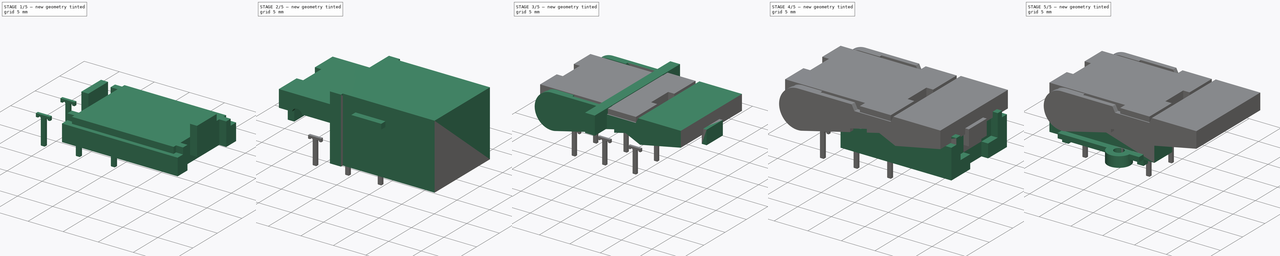
[diagram: build sequence overview — one tinted view per stage of 5, left to right]
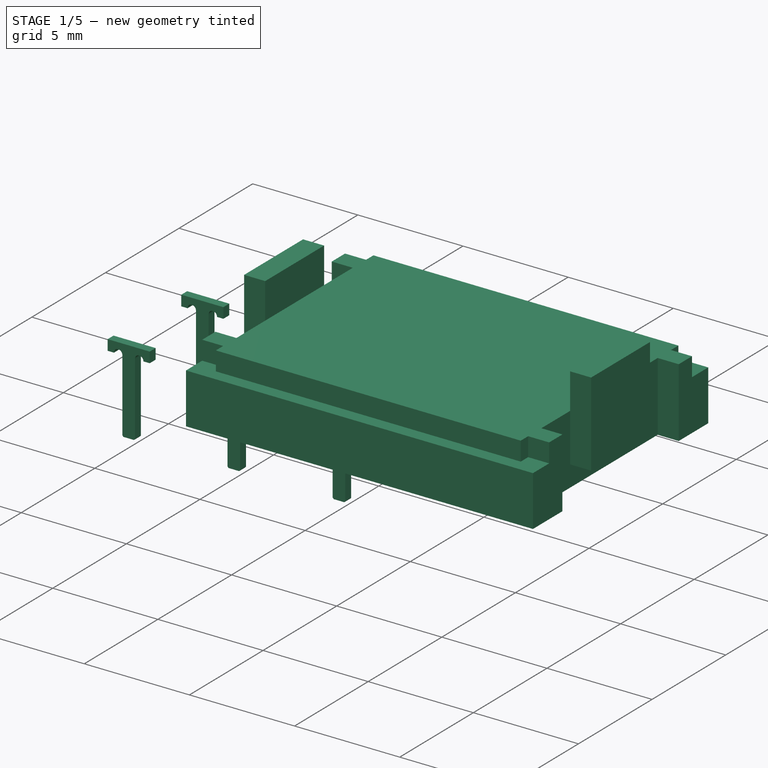
[diagram: stage 1 of 5 — iso view after this stage's code; geometry added in this stage tinted green]
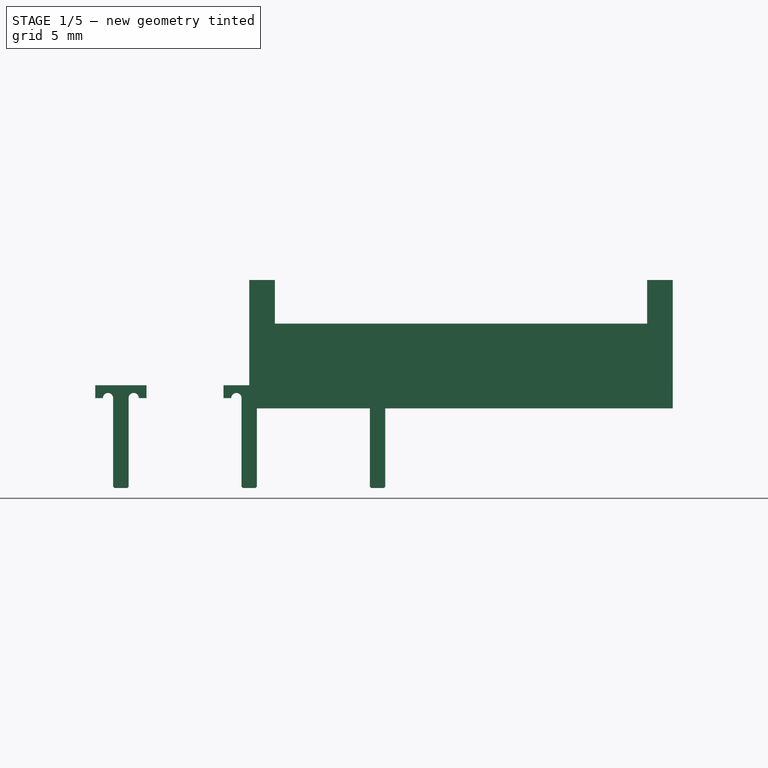
[diagram: stage 1 of 5 — front view after this stage's code; geometry added in this stage tinted green]
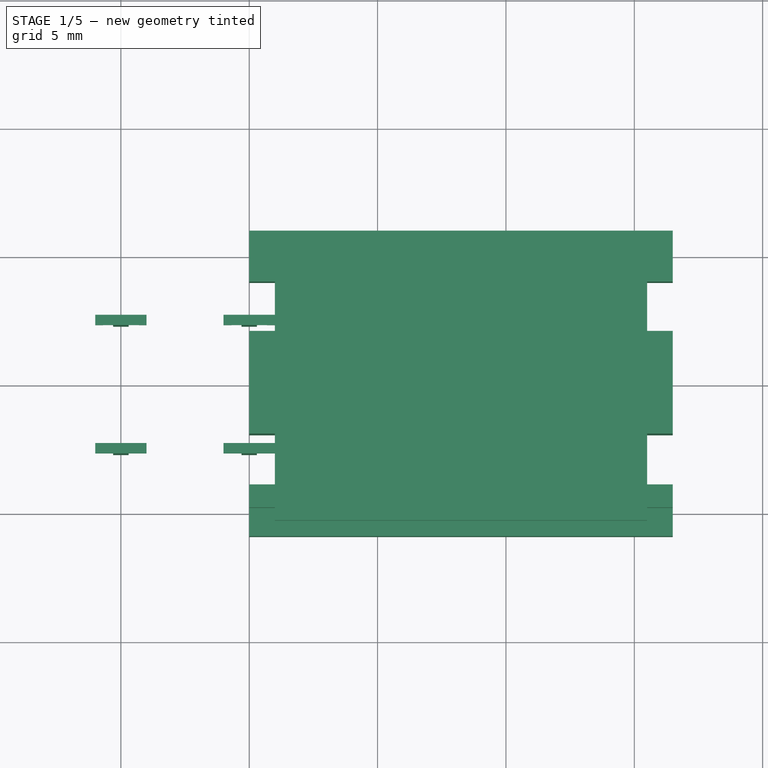
[diagram: stage 1 of 5 — top view after this stage's code; geometry added in this stage tinted green]
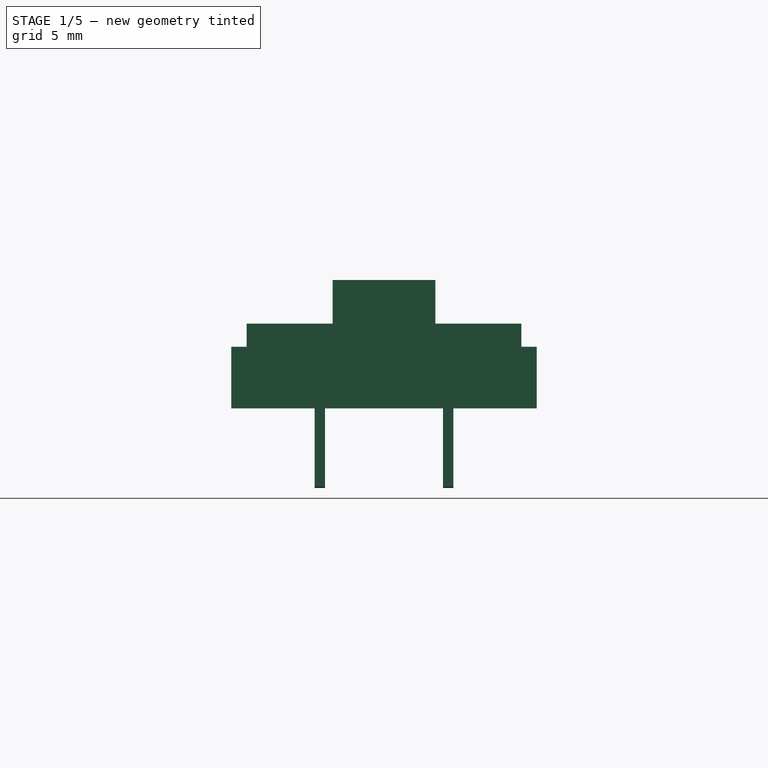
[diagram: stage 1 of 5 — right view after this stage's code; geometry added in this stage tinted green]
FCSTD DOCUMENT  (FreeCAD 0.18R4 (GitTag))
Label: H012-10
License: All rights reserved
LicenseURL: http://en.wikipedia.org/wiki/All_rights_reserved
objects: Part::Box×37, Part::Cut×19, Part::Cylinder×8, Part::MultiFuse×7, Part::Compound×7, Sketcher::SketchObject×7, Part::Extrusion×7, Part::Chamfer×2
note: 94 computed .brp shape members not serialized (recipe doc carries the construction recipe); baked Part::Feature solids carry a one-line shape summary decoded from their .brp

FEATURE [Part::Box] Box026  label="Cube023"
  AttacherType = Attacher::AttachEngine3D
  Height = 2.4
  Length = 16.5
  Placement = pos=(0,3.95,0) rot=(0,0,1;0rad)
  Width = 2
FEATURE [Part::Box] Box029  label="Cube026"
  AttacherType = Attacher::AttachEngine3D
  Height = 0.9
  Length = 16.5
  Placement = pos=(0,-4.85,2.4) rot=(0,0,1;0rad)
  Width = 0.9
  expr: Height = 0.9
FEATURE [Part::Box] Box030  label="Cube027"
  AttacherType = Attacher::AttachEngine3D
  Height = 4
  Length = 1
  Placement = pos=(15.5,-2,1) rot=(0,0,1;0rad)
  Width = 4
  expr: Placement.Base.y = -Width / 2
FEATURE [Part::Box] Box031  label="Cube028"
  AttacherType = Attacher::AttachEngine3D
  Height = 4
  Length = 1
  Placement = pos=(0,-2,1) rot=(0,0,1;0rad)
  Width = 4
  expr: Placement.Base.y = -Width / 2
FEATURE [Part::Box] Box032  label="Cube029"
  AttacherType = Attacher::AttachEngine3D
  Height = 2.4
  Length = 16.5
  Placement = pos=(0,-5.95,0) rot=(0,0,1;0rad)
  Width = 2
FEATURE [Part::Box] Box035  label="Cube032"
  AttacherType = Attacher::AttachEngine3D
  Height = 0.9
  Length = 16.5
  Placement = pos=(0,3.95,2.4) rot=(0,0,1;0rad)
  Width = 0.9
  expr: Height = 0.9
FEATURE [Part::Box] Box036  label="Cube033"
  AttacherType = Attacher::AttachEngine3D
  Height = 3.3
  Length = 14.5
  Placement = pos=(1,-5.35,0) rot=(0,0,1;0rad)
  Width = 10.7
  expr: Placement.Base.y = -Width / 2
FEATURE [Part::Compound] Compound003
  Links = -> [Box030,Box031]
FEATURE [Part::Compound] Compound004
  Links = -> [Box029,Box035]
FEATURE [Part::Compound] Compound005
  Links = -> [Box026,Box032]
FEATURE [Sketcher::SketchObject] Sketch002
  Placement = pos=(0,0.2,0) rot=(1,0,0;1.5708rad)
  sketch-geometry (14):
    g0: LineSegment StartX=0 StartY=0 StartZ=0 EndX=0.25 EndY=0 EndZ=0
    g1: LineSegment StartX=0.25 StartY=0 StartZ=0 EndX=0.3 EndY=0.05 EndZ=0
    g2: LineSegment StartX=0.3 StartY=0.05 StartZ=0 EndX=0.3 EndY=3.5 EndZ=0
    g3: ArcOfCircle CenterX=0.5 CenterY=3.5 CenterZ=0 NormalX=0 NormalY=0 NormalZ=1 AngleXU=0 Radius=0.2 StartAngle=-9e-16 EndAngle=3.14159
    g4: LineSegment StartX=0.7 StartY=3.5 StartZ=0 EndX=1 EndY=3.5 EndZ=0
    g5: LineSegment StartX=0 StartY=4 StartZ=0 EndX=1 EndY=4 EndZ=0
    g6: LineSegment StartX=1 StartY=3.5 StartZ=0 EndX=1 EndY=4 EndZ=0
    g7: LineSegment StartX=-1 StartY=4 StartZ=0 EndX=0 EndY=4 EndZ=0
    g8: LineSegment StartX=0 StartY=0 StartZ=0 EndX=-0.25 EndY=0 EndZ=0
    g9: LineSegment StartX=-0.25 StartY=0 StartZ=0 EndX=-0.3 EndY=0.05 EndZ=0
    g10: LineSegment StartX=-0.3 StartY=3.5 StartZ=0 EndX=-0.3 EndY=0.05 EndZ=0
    g11: ArcOfCircle CenterX=-0.5 CenterY=3.5 CenterZ=0 NormalX=0 NormalY=0 NormalZ=1 AngleXU=0 Radius=0.2 StartAngle=6e-16 EndAngle=3.14159
    g12: LineSegment StartX=-0.7 StartY=3.5 StartZ=0 EndX=-1 EndY=3.5 EndZ=0
    g13: LineSegment StartX=-1 StartY=3.5 StartZ=0 EndX=-1 EndY=4 EndZ=0
  constraints (43):
    c: Coincident(g0,g-1)
    c: DistanceX(g0,g0) = 0.25
    c: Horizontal(g0)
    c: Coincident(g1,g0)
    c: DistanceX(g0,g1) = 0.05
    c: DistanceY(g0,g1) = 0.05
    c: Vertical(g2)
    c: Distance(g2) = 3.45
    c: Coincident(g2,g1)
    c: Horizontal(g3,g3)
    c: Radius(g3) = 0.2
    c: Coincident(g3,g2)
    c: Angle(g3) = 3.14159
    c: Horizontal(g4)
    c: Coincident(g4,g3)
    c: DistanceX(g0,g4) = 1
    c: Horizontal(g5)
    c: DistanceX(g5,g5) = 1
    c: DistanceX(g0,g5) = 0
    c: DistanceY(g0,g5) = 4
    c: Coincident(g6,g4)
    c: Coincident(g6,g5)
    c: DistanceX(g7,g7) = 1
    c: Horizontal(g7)
    c: Coincident(g7,g5)
    c: Horizontal(g8)
    c: Coincident(g8,g0)
    c: Equal(g8,g0)
    c: Coincident(g9,g8)
    c: DistanceX(g9,g8) = 0.05
    c: DistanceY(g8,g9) = 0.05
    c: Vertical(g10)
    c: Distance(g10) = 3.45
    c: Coincident(g10,g9)
    c: Horizontal(g11,g11)
    c: Angle(g11) = 3.14159
    c: Radius(g11) = 0.2
    c: Coincident(g11,g10)
    c: Horizontal(g12)
    c: Coincident(g12,g11)
    c: DistanceX(g12,g0) = 1
    c: Coincident(g13,g12)
    c: Coincident(g13,g7)
FEATURE [Part::Extrusion] Extrude001  label="PinExtrude001"
  Base = -> Sketch002
  Dir = (0,-1,0)
  DirMode = 2
  FaceMakerClass = Part::FaceMakerBullseye
  LengthFwd = 0.4
  LengthRev = 0
  Placement = pos=(-5,2.5,-3.1) rot=(0,0,1;0rad)
  Solid = true
  Symmetric = false
FEATURE [Sketcher::SketchObject] Sketch003
  Placement = pos=(0,0.2,0) rot=(1,0,0;1.5708rad)
  sketch-geometry (14):
    g0: LineSegment StartX=0 StartY=0 StartZ=0 EndX=0.25 EndY=0 EndZ=0
    g1: LineSegment StartX=0.25 StartY=0 StartZ=0 EndX=0.3 EndY=0.05 EndZ=0
    g2: LineSegment StartX=0.3 StartY=0.05 StartZ=0 EndX=0.3 EndY=3.5 EndZ=0
    g3: ArcOfCircle CenterX=0.5 CenterY=3.5 CenterZ=0 NormalX=0 NormalY=0 NormalZ=1 AngleXU=0 Radius=0.2 StartAngle=-9e-16 EndAngle=3.14159
    g4: LineSegment StartX=0.7 StartY=3.5 StartZ=0 EndX=1 EndY=3.5 EndZ=0
    g5: LineSegment StartX=0 StartY=4 StartZ=0 EndX=1 EndY=4 EndZ=0
    g6: LineSegment StartX=1 StartY=3.5 StartZ=0 EndX=1 EndY=4 EndZ=0
    g7: LineSegment StartX=-1 StartY=4 StartZ=0 EndX=0 EndY=4 EndZ=0
    g8: LineSegment StartX=0 StartY=0 StartZ=0 EndX=-0.25 EndY=0 EndZ=0
    g9: LineSegment StartX=-0.25 StartY=0 StartZ=0 EndX=-0.3 EndY=0.05 EndZ=0
    g10: LineSegment StartX=-0.3 StartY=3.5 StartZ=0 EndX=-0.3 EndY=0.05 EndZ=0
    g11: ArcOfCircle CenterX=-0.5 CenterY=3.5 CenterZ=0 NormalX=0 NormalY=0 NormalZ=1 AngleXU=0 Radius=0.2 StartAngle=6e-16 EndAngle=3.14159
    g12: LineSegment StartX=-0.7 StartY=3.5 StartZ=0 EndX=-1 EndY=3.5 EndZ=0
    g13: LineSegment StartX=-1 StartY=3.5 StartZ=0 EndX=-1 EndY=4 EndZ=0
  constraints (43):
    c: Coincident(g0,g-1)
    c: DistanceX(g0,g0) = 0.25
    c: Horizontal(g0)
    c: Coincident(g1,g0)
    c: DistanceX(g0,g1) = 0.05
    c: DistanceY(g0,g1) = 0.05
    c: Vertical(g2)
    c: Distance(g2) = 3.45
    c: Coincident(g2,g1)
    c: Horizontal(g3,g3)
    c: Radius(g3) = 0.2
    c: Coincident(g3,g2)
    c: Angle(g3) = 3.14159
    c: Horizontal(g4)
    c: Coincident(g4,g3)
    c: DistanceX(g0,g4) = 1
    c: Horizontal(g5)
    c: DistanceX(g5,g5) = 1
    c: DistanceX(g0,g5) = 0
    c: DistanceY(g0,g5) = 4
    c: Coincident(g6,g4)
    c: Coincident(g6,g5)
    c: DistanceX(g7,g7) = 1
    c: Horizontal(g7)
    c: Coincident(g7,g5)
    c: Horizontal(g8)
    c: Coincident(g8,g0)
    c: Equal(g8,g0)
    c: Coincident(g9,g8)
    c: DistanceX(g9,g8) = 0.05
    c: DistanceY(g8,g9) = 0.05
    c: Vertical(g10)
    c: Distance(g10) = 3.45
    c: Coincident(g10,g9)
    c: Horizontal(g11,g11)
    c: Angle(g11) = 3.14159
    c: Radius(g11) = 0.2
    c: Coincident(g11,g10)
    c: Horizontal(g12)
    c: Coincident(g12,g11)
    c: DistanceX(g12,g0) = 1
    c: Coincident(g13,g12)
    c: Coincident(g13,g7)
FEATURE [Part::Extrusion] Extrude002  label="PinExtrude002"
  Base = -> Sketch003
  Dir = (0,-1,0)
  DirMode = 2
  FaceMakerClass = Part::FaceMakerBullseye
  LengthFwd = 0.4
  LengthRev = 0
  Placement = pos=(-5,-2.5,-3.1) rot=(0,0,1;0rad)
  Solid = true
  Symmetric = false
FEATURE [Sketcher::SketchObject] Sketch004
  Placement = pos=(0,0.2,0) rot=(1,0,0;1.5708rad)
  sketch-geometry (14):
    g0: LineSegment StartX=0 StartY=0 StartZ=0 EndX=0.25 EndY=0 EndZ=0
    g1: LineSegment StartX=0.25 StartY=0 StartZ=0 EndX=0.3 EndY=0.05 EndZ=0
    g2: LineSegment StartX=0.3 StartY=0.05 StartZ=0 EndX=0.3 EndY=3.5 EndZ=0
    g3: ArcOfCircle CenterX=0.5 CenterY=3.5 CenterZ=0 NormalX=0 NormalY=0 NormalZ=1 AngleXU=0 Radius=0.2 StartAngle=-9e-16 EndAngle=3.14159
    g4: LineSegment StartX=0.7 StartY=3.5 StartZ=0 EndX=1 EndY=3.5 EndZ=0
    g5: LineSegment StartX=0 StartY=4 StartZ=0 EndX=1 EndY=4 EndZ=0
    g6: LineSegment StartX=1 StartY=3.5 StartZ=0 EndX=1 EndY=4 EndZ=0
    g7: LineSegment StartX=-1 StartY=4 StartZ=0 EndX=0 EndY=4 EndZ=0
    g8: LineSegment StartX=0 StartY=0 StartZ=0 EndX=-0.25 EndY=0 EndZ=0
    g9: LineSegment StartX=-0.25 StartY=0 StartZ=0 EndX=-0.3 EndY=0.05 EndZ=0
    g10: LineSegment StartX=-0.3 StartY=3.5 StartZ=0 EndX=-0.3 EndY=0.05 EndZ=0
    g11: ArcOfCircle CenterX=-0.5 CenterY=3.5 CenterZ=0 NormalX=0 NormalY=0 NormalZ=1 AngleXU=0 Radius=0.2 StartAngle=6e-16 EndAngle=3.14159
    g12: LineSegment StartX=-0.7 StartY=3.5 StartZ=0 EndX=-1 EndY=3.5 EndZ=0
    g13: LineSegment StartX=-1 StartY=3.5 StartZ=0 EndX=-1 EndY=4 EndZ=0
  constraints (43):
    c: Coincident(g0,g-1)
    c: DistanceX(g0,g0) = 0.25
    c: Horizontal(g0)
    c: Coincident(g1,g0)
    c: DistanceX(g0,g1) = 0.05
    c: DistanceY(g0,g1) = 0.05
    c: Vertical(g2)
    c: Distance(g2) = 3.45
    c: Coincident(g2,g1)
    c: Horizontal(g3,g3)
    c: Radius(g3) = 0.2
    c: Coincident(g3,g2)
    c: Angle(g3) = 3.14159
    c: Horizontal(g4)
    c: Coincident(g4,g3)
    c: DistanceX(g0,g4) = 1
    c: Horizontal(g5)
    c: DistanceX(g5,g5) = 1
    c: DistanceX(g0,g5) = 0
    c: DistanceY(g0,g5) = 4
    c: Coincident(g6,g4)
    c: Coincident(g6,g5)
    c: DistanceX(g7,g7) = 1
    c: Horizontal(g7)
    c: Coincident(g7,g5)
    c: Horizontal(g8)
    c: Coincident(g8,g0)
    c: Equal(g8,g0)
    c: Coincident(g9,g8)
    c: DistanceX(g9,g8) = 0.05
    c: DistanceY(g8,g9) = 0.05
    c: Vertical(g10)
    c: Distance(g10) = 3.45
    c: Coincident(g10,g9)
    c: Horizontal(g11,g11)
    c: Angle(g11) = 3.14159
    c: Radius(g11) = 0.2
    c: Coincident(g11,g10)
    c: Horizontal(g12)
    c: Coincident(g12,g11)
    c: DistanceX(g12,g0) = 1
    c: Coincident(g13,g12)
    c: Coincident(g13,g7)
FEATURE [Part::Extrusion] Extrude003  label="PinExtrude003"
  Base = -> Sketch004
  Dir = (0,-1,0)
  DirMode = 2
  FaceMakerClass = Part::FaceMakerBullseye
  LengthFwd = 0.4
  LengthRev = 0
  Placement = pos=(0,2.5,-3.1) rot=(0,0,1;0rad)
  Solid = true
  Symmetric = false
FEATURE [Sketcher::SketchObject] Sketch005
  Placement = pos=(0,0.2,0) rot=(1,0,0;1.5708rad)
  sketch-geometry (14):
    g0: LineSegment StartX=0 StartY=0 StartZ=0 EndX=0.25 EndY=0 EndZ=0
    g1: LineSegment StartX=0.25 StartY=0 StartZ=0 EndX=0.3 EndY=0.05 EndZ=0
    g2: LineSegment StartX=0.3 StartY=0.05 StartZ=0 EndX=0.3 EndY=3.5 EndZ=0
    g3: ArcOfCircle CenterX=0.5 CenterY=3.5 CenterZ=0 NormalX=0 NormalY=0 NormalZ=1 AngleXU=0 Radius=0.2 StartAngle=-9e-16 EndAngle=3.14159
    g4: LineSegment StartX=0.7 StartY=3.5 StartZ=0 EndX=1 EndY=3.5 EndZ=0
    g5: LineSegment StartX=0 StartY=4 StartZ=0 EndX=1 EndY=4 EndZ=0
    g6: LineSegment StartX=1 StartY=3.5 StartZ=0 EndX=1 EndY=4 EndZ=0
    g7: LineSegment StartX=-1 StartY=4 StartZ=0 EndX=0 EndY=4 EndZ=0
    g8: LineSegment StartX=0 StartY=0 StartZ=0 EndX=-0.25 EndY=0 EndZ=0
    g9: LineSegment StartX=-0.25 StartY=0 StartZ=0 EndX=-0.3 EndY=0.05 EndZ=0
    g10: LineSegment StartX=-0.3 StartY=3.5 StartZ=0 EndX=-0.3 EndY=0.05 EndZ=0
    g11: ArcOfCircle CenterX=-0.5 CenterY=3.5 CenterZ=0 NormalX=0 NormalY=0 NormalZ=1 AngleXU=0 Radius=0.2 StartAngle=6e-16 EndAngle=3.14159
    g12: LineSegment StartX=-0.7 StartY=3.5 StartZ=0 EndX=-1 EndY=3.5 EndZ=0
    g13: LineSegment StartX=-1 StartY=3.5 StartZ=0 EndX=-1 EndY=4 EndZ=0
  constraints (43):
    c: Coincident(g0,g-1)
    c: DistanceX(g0,g0) = 0.25
    c: Horizontal(g0)
    c: Coincident(g1,g0)
    c: DistanceX(g0,g1) = 0.05
    c: DistanceY(g0,g1) = 0.05
    c: Vertical(g2)
    c: Distance(g2) = 3.45
    c: Coincident(g2,g1)
    c: Horizontal(g3,g3)
    c: Radius(g3) = 0.2
    c: Coincident(g3,g2)
    c: Angle(g3) = 3.14159
    c: Horizontal(g4)
    c: Coincident(g4,g3)
    c: DistanceX(g0,g4) = 1
    c: Horizontal(g5)
    c: DistanceX(g5,g5) = 1
    c: DistanceX(g0,g5) = 0
    c: DistanceY(g0,g5) = 4
    c: Coincident(g6,g4)
    c: Coincident(g6,g5)
    c: DistanceX(g7,g7) = 1
    c: Horizontal(g7)
    c: Coincident(g7,g5)
    c: Horizontal(g8)
    c: Coincident(g8,g0)
    c: Equal(g8,g0)
    c: Coincident(g9,g8)
    c: DistanceX(g9,g8) = 0.05
    c: DistanceY(g8,g9) = 0.05
    c: Vertical(g10)
    c: Distance(g10) = 3.45
    c: Coincident(g10,g9)
    c: Horizontal(g11,g11)
    c: Angle(g11) = 3.14159
    c: Radius(g11) = 0.2
    c: Coincident(g11,g10)
    c: Horizontal(g12)
    c: Coincident(g12,g11)
    c: DistanceX(g12,g0) = 1
    c: Coincident(g13,g12)
    c: Coincident(g13,g7)
FEATURE [Part::Extrusion] Extrude004  label="PinExtrude004"
  Base = -> Sketch005
  Dir = (0,-1,0)
  DirMode = 2
  FaceMakerClass = Part::FaceMakerBullseye
  LengthFwd = 0.4
  LengthRev = 0
  Placement = pos=(0,-2.5,-3.1) rot=(0,0,1;0rad)
  Solid = true
  Symmetric = false
FEATURE [Sketcher::SketchObject] Sketch006
  Placement = pos=(0,0.2,0) rot=(1,0,0;1.5708rad)
  sketch-geometry (14):
    g0: LineSegment StartX=0 StartY=0 StartZ=0 EndX=0.25 EndY=0 EndZ=0
    g1: LineSegment StartX=0.25 StartY=0 StartZ=0 EndX=0.3 EndY=0.05 EndZ=0
    g2: LineSegment StartX=0.3 StartY=0.05 StartZ=0 EndX=0.3 EndY=3.5 EndZ=0
    g3: ArcOfCircle CenterX=0.5 CenterY=3.5 CenterZ=0 NormalX=0 NormalY=0 NormalZ=1 AngleXU=0 Radius=0.2 StartAngle=-9e-16 EndAngle=3.14159
    g4: LineSegment StartX=0.7 StartY=3.5 StartZ=0 EndX=1 EndY=3.5 EndZ=0
    g5: LineSegment StartX=0 StartY=4 StartZ=0 EndX=1 EndY=4 EndZ=0
    g6: LineSegment StartX=1 StartY=3.5 StartZ=0 EndX=1 EndY=4 EndZ=0
    g7: LineSegment StartX=-1 StartY=4 StartZ=0 EndX=0 EndY=4 EndZ=0
    g8: LineSegment StartX=0 StartY=0 StartZ=0 EndX=-0.25 EndY=0 EndZ=0
    g9: LineSegment StartX=-0.25 StartY=0 StartZ=0 EndX=-0.3 EndY=0.05 EndZ=0
    g10: LineSegment StartX=-0.3 StartY=3.5 StartZ=0 EndX=-0.3 EndY=0.05 EndZ=0
    g11: ArcOfCircle CenterX=-0.5 CenterY=3.5 CenterZ=0 NormalX=0 NormalY=0 NormalZ=1 AngleXU=0 Radius=0.2 StartAngle=6e-16 EndAngle=3.14159
    g12: LineSegment StartX=-0.7 StartY=3.5 StartZ=0 EndX=-1 EndY=3.5 EndZ=0
    g13: LineSegment StartX=-1 StartY=3.5 StartZ=0 EndX=-1 EndY=4 EndZ=0
  constraints (43):
    c: Coincident(g0,g-1)
    c: DistanceX(g0,g0) = 0.25
    c: Horizontal(g0)
    c: Coincident(g1,g0)
    c: DistanceX(g0,g1) = 0.05
    c: DistanceY(g0,g1) = 0.05
    c: Vertical(g2)
    c: Distance(g2) = 3.45
    c: Coincident(g2,g1)
    c: Horizontal(g3,g3)
    c: Radius(g3) = 0.2
    c: Coincident(g3,g2)
    c: Angle(g3) = 3.14159
    c: Horizontal(g4)
    c: Coincident(g4,g3)
    c: DistanceX(g0,g4) = 1
    c: Horizontal(g5)
    c: DistanceX(g5,g5) = 1
    c: DistanceX(g0,g5) = 0
    c: DistanceY(g0,g5) = 4
    c: Coincident(g6,g4)
    c: Coincident(g6,g5)
    c: DistanceX(g7,g7) = 1
    c: Horizontal(g7)
    c: Coincident(g7,g5)
    c: Horizontal(g8)
    c: Coincident(g8,g0)
    c: Equal(g8,g0)
    c: Coincident(g9,g8)
    c: DistanceX(g9,g8) = 0.05
    c: DistanceY(g8,g9) = 0.05
    c: Vertical(g10)
    c: Distance(g10) = 3.45
    c: Coincident(g10,g9)
    c: Horizontal(g11,g11)
    c: Angle(g11) = 3.14159
    c: Radius(g11) = 0.2
    c: Coincident(g11,g10)
    c: Horizontal(g12)
    c: Coincident(g12,g11)
    c: DistanceX(g12,g0) = 1
    c: Coincident(g13,g12)
    c: Coincident(g13,g7)
FEATURE [Part::Extrusion] Extrude005  label="PinExtrude005"
  Base = -> Sketch006
  Dir = (0,-1,0)
  DirMode = 2
  FaceMakerClass = Part::FaceMakerBullseye
  LengthFwd = 0.4
  LengthRev = 0
  Placement = pos=(5,2.5,-3.1) rot=(0,0,1;0rad)
  Solid = true
  Symmetric = false
FEATURE [Sketcher::SketchObject] Sketch007
  Placement = pos=(0,0.2,0) rot=(1,0,0;1.5708rad)
  sketch-geometry (14):
    g0: LineSegment StartX=0 StartY=0 StartZ=0 EndX=0.25 EndY=0 EndZ=0
    g1: LineSegment StartX=0.25 StartY=0 StartZ=0 EndX=0.3 EndY=0.05 EndZ=0
    g2: LineSegment StartX=0.3 StartY=0.05 StartZ=0 EndX=0.3 EndY=3.5 EndZ=0
    g3: ArcOfCircle CenterX=0.5 CenterY=3.5 CenterZ=0 NormalX=0 NormalY=0 NormalZ=1 AngleXU=0 Radius=0.2 StartAngle=-9e-16 EndAngle=3.14159
    g4: LineSegment StartX=0.7 StartY=3.5 StartZ=0 EndX=1 EndY=3.5 EndZ=0
    g5: LineSegment StartX=0 StartY=4 StartZ=0 EndX=1 EndY=4 EndZ=0
    g6: LineSegment StartX=1 StartY=3.5 StartZ=0 EndX=1 EndY=4 EndZ=0
    g7: LineSegment StartX=-1 StartY=4 StartZ=0 EndX=0 EndY=4 EndZ=0
    g8: LineSegment StartX=0 StartY=0 StartZ=0 EndX=-0.25 EndY=0 EndZ=0
    g9: LineSegment StartX=-0.25 StartY=0 StartZ=0 EndX=-0.3 EndY=0.05 EndZ=0
    g10: LineSegment StartX=-0.3 StartY=3.5 StartZ=0 EndX=-0.3 EndY=0.05 EndZ=0
    g11: ArcOfCircle CenterX=-0.5 CenterY=3.5 CenterZ=0 NormalX=0 NormalY=0 NormalZ=1 AngleXU=0 Radius=0.2 StartAngle=6e-16 EndAngle=3.14159
    g12: LineSegment StartX=-0.7 StartY=3.5 StartZ=0 EndX=-1 EndY=3.5 EndZ=0
    g13: LineSegment StartX=-1 StartY=3.5 StartZ=0 EndX=-1 EndY=4 EndZ=0
  constraints (43):
    c: Coincident(g0,g-1)
    c: DistanceX(g0,g0) = 0.25
    c: Horizontal(g0)
    c: Coincident(g1,g0)
    c: DistanceX(g0,g1) = 0.05
    c: DistanceY(g0,g1) = 0.05
    c: Vertical(g2)
    c: Distance(g2) = 3.45
    c: Coincident(g2,g1)
    c: Horizontal(g3,g3)
    c: Radius(g3) = 0.2
    c: Coincident(g3,g2)
    c: Angle(g3) = 3.14159
    c: Horizontal(g4)
    c: Coincident(g4,g3)
    c: DistanceX(g0,g4) = 1
    c: Horizontal(g5)
    c: DistanceX(g5,g5) = 1
    c: DistanceX(g0,g5) = 0
    c: DistanceY(g0,g5) = 4
    c: Coincident(g6,g4)
    c: Coincident(g6,g5)
    c: DistanceX(g7,g7) = 1
    c: Horizontal(g7)
    c: Coincident(g7,g5)
    c: Horizontal(g8)
    c: Coincident(g8,g0)
    c: Equal(g8,g0)
    c: Coincident(g9,g8)
    c: DistanceX(g9,g8) = 0.05
    c: DistanceY(g8,g9) = 0.05
    c: Vertical(g10)
    c: Distance(g10) = 3.45
    c: Coincident(g10,g9)
    c: Horizontal(g11,g11)
    c: Angle(g11) = 3.14159
    c: Radius(g11) = 0.2
    c: Coincident(g11,g10)
    c: Horizontal(g12)
    c: Coincident(g12,g11)
    c: DistanceX(g12,g0) = 1
    c: Coincident(g13,g12)
    c: Coincident(g13,g7)
FEATURE [Part::Extrusion] Extrude006  label="PinExtrude006"
  Base = -> Sketch007
  Dir = (0,-1,0)
  DirMode = 2
  FaceMakerClass = Part::FaceMakerBullseye
  LengthFwd = 0.4
  LengthRev = 0
  Placement = pos=(5,-2.5,-3.1) rot=(0,0,1;0rad)
  Solid = true
  Symmetric = false
FEATURE [Part::Compound] Compound006  label="Pins"
  Links = -> [Extrude006,Extrude005,Extrude004,Extrude003,Extrude002,Extrude001]
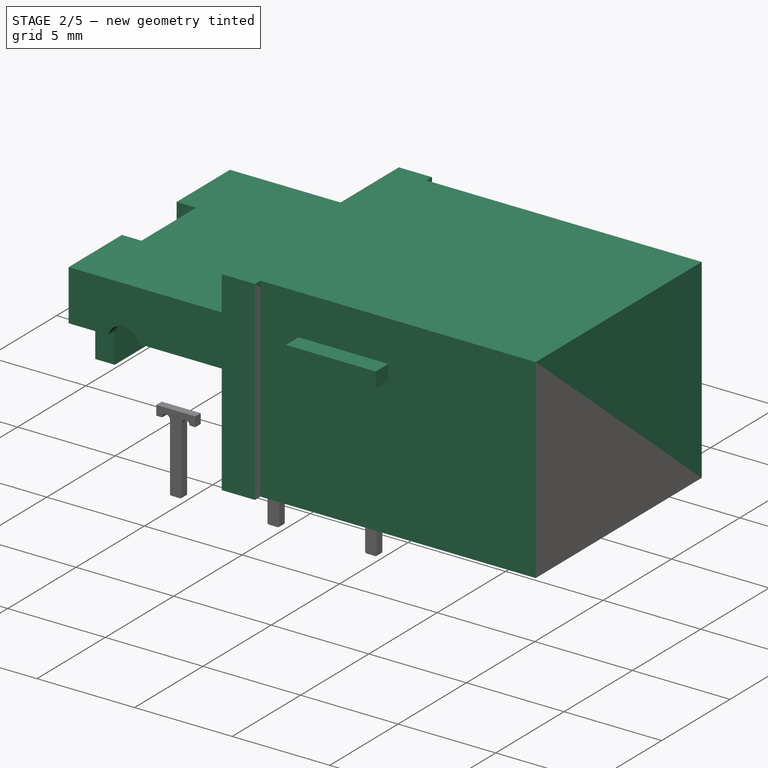
[diagram: stage 2 of 5 — iso view after this stage's code; geometry added in this stage tinted green]
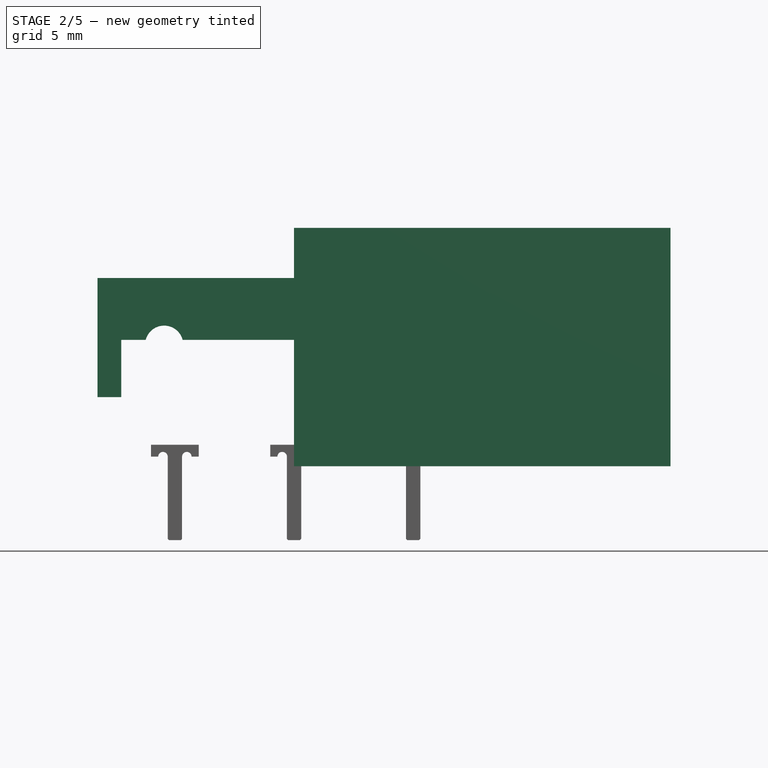
[diagram: stage 2 of 5 — front view after this stage's code; geometry added in this stage tinted green]
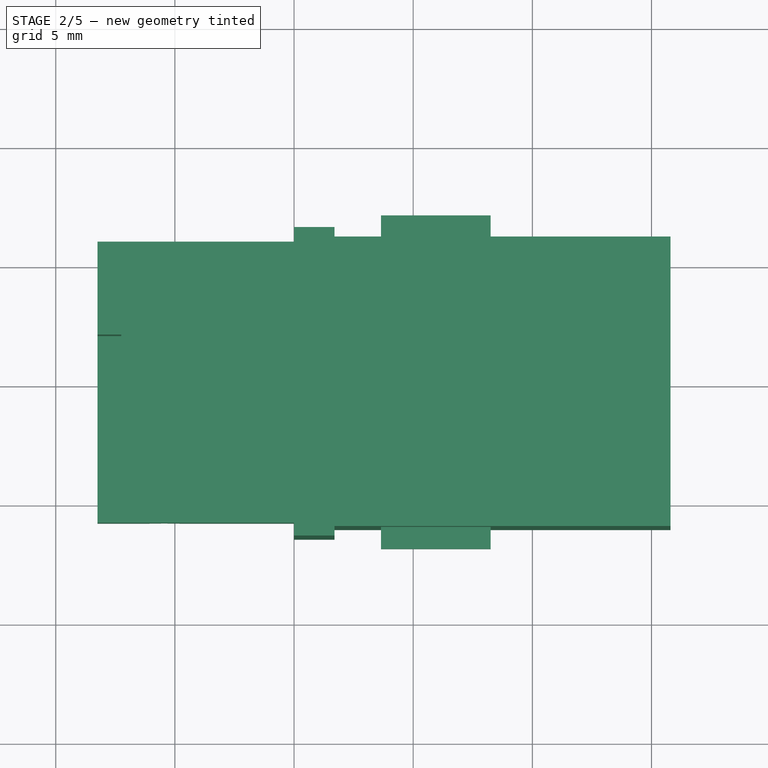
[diagram: stage 2 of 5 — top view after this stage's code; geometry added in this stage tinted green]
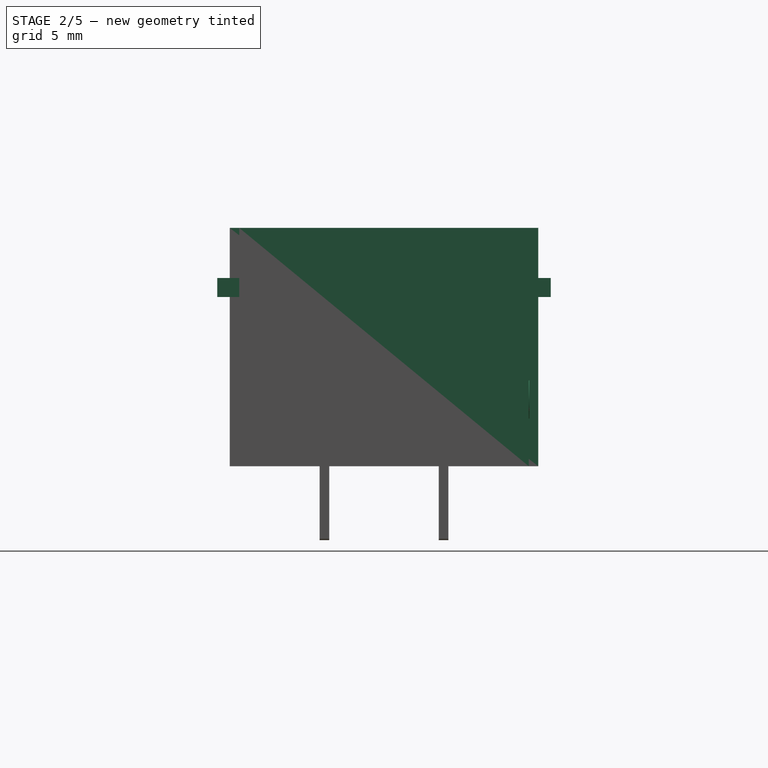
[diagram: stage 2 of 5 — right view after this stage's code; geometry added in this stage tinted green]
FEATURE [Part::Box] Box023  label="Cube020"
  AttacherType = Attacher::AttachEngine3D
  Height = 10
  Length = 15.8
  Placement = pos=(0,-6.075,0) rot=(0,0,1;0rad)
  Width = 12.15
  expr: Placement.Base.y = -Width / 2
FEATURE [Part::Box] Box024  label="Cube021"
  AttacherType = Attacher::AttachEngine3D
  Height = 10
  Length = 1.7
  Placement = pos=(0,-6.475,0) rot=(0,0,1;0rad)
  Width = 12.95
  expr: Placement.Base.y = -Width / 2
FEATURE [Part::Cylinder] Cylinder006
  Angle = 360
  AttacherType = Attacher::AttachEngine3D
  Height = 2
  Placement = pos=(2.8,6.1,2.8) rot=(1,0,0;1.5708rad)
  Radius = 0.8
FEATURE [Part::Box] Box025  label="Cube022"
  AttacherType = Attacher::AttachEngine3D
  Height = 5
  Length = 16.5
  Placement = pos=(0,-7,0) rot=(0,0,1;0rad)
  Width = 14
FEATURE [Part::Box] Box027  label="Cube024"
  AttacherType = Attacher::AttachEngine3D
  Height = 5
  Length = 11.9
  Placement = pos=(0,5.9,0) rot=(0,0,1;0rad)
  Width = 1.1
  expr: Length = 16.5 - 4.6
FEATURE [Part::Box] Box028  label="Cube025"
  AttacherType = Attacher::AttachEngine3D
  Height = 4.2
  Length = 4.6
  Placement = pos=(11.9,-7,0) rot=(0,0,1;0rad)
  Width = 1.1
  expr: Length = 4.6
FEATURE [Part::Cylinder] Cylinder007
  Angle = 360
  AttacherType = Attacher::AttachEngine3D
  Height = 20
  Placement = pos=(2.8,10,2.2) rot=(1,0,0;1.5708rad)
  Radius = 0.8
FEATURE [Part::Box] Box033  label="Cube030"
  AttacherType = Attacher::AttachEngine3D
  Height = 5
  Length = 11.9
  Placement = pos=(0,-7,0) rot=(0,0,1;0rad)
  Width = 1.1
  expr: Length = 16.5 - 4.6
FEATURE [Part::Box] Box034  label="Cube031"
  AttacherType = Attacher::AttachEngine3D
  Height = 4.2
  Length = 4.6
  Placement = pos=(11.9,5.9,0) rot=(0,0,1;0rad)
  Width = 1.1
  expr: Length = 4.6
FEATURE [Part::Cut] Cut014
  Base = -> Box025
  Tool = -> Compound003
FEATURE [Part::Cut] Cut012
  Base = -> Cut014
  Tool = -> Box034
FEATURE [Part::Cut] Cut016
  Base = -> Cut012
  Tool = -> Box028
FEATURE [Part::Cut] Cut013
  Base = -> Cut016
  Tool = -> Box033
FEATURE [Part::Cut] Cut015
  Base = -> Cut013
  Tool = -> Box027
FEATURE [Part::Cut] Cut017
  Base = -> Cut015
  Tool = -> Box036
FEATURE [Part::Cut] Cut018
  Base = -> Cut017
  Tool = -> Compound005
FEATURE [Part::Cut] Cut011
  Base = -> Cut018
  Tool = -> Compound004
FEATURE [Part::Cut] Cut010  label="TopCut"
  Base = -> Cut011
  Placement = pos=(-8.25,0,2.9) rot=(0,0,1;0rad)
  Tool = -> Cylinder007
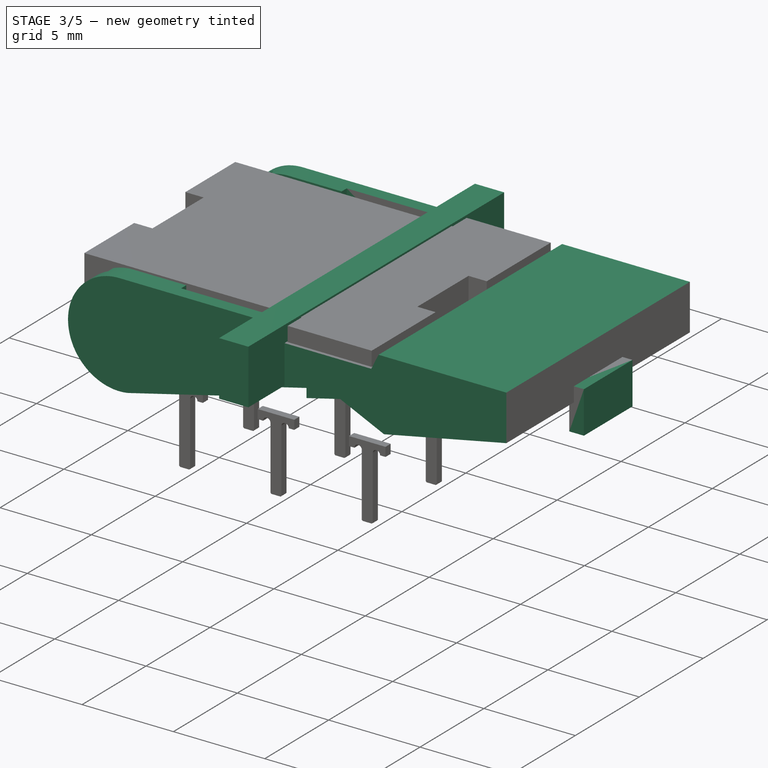
[diagram: stage 3 of 5 — iso view after this stage's code; geometry added in this stage tinted green]
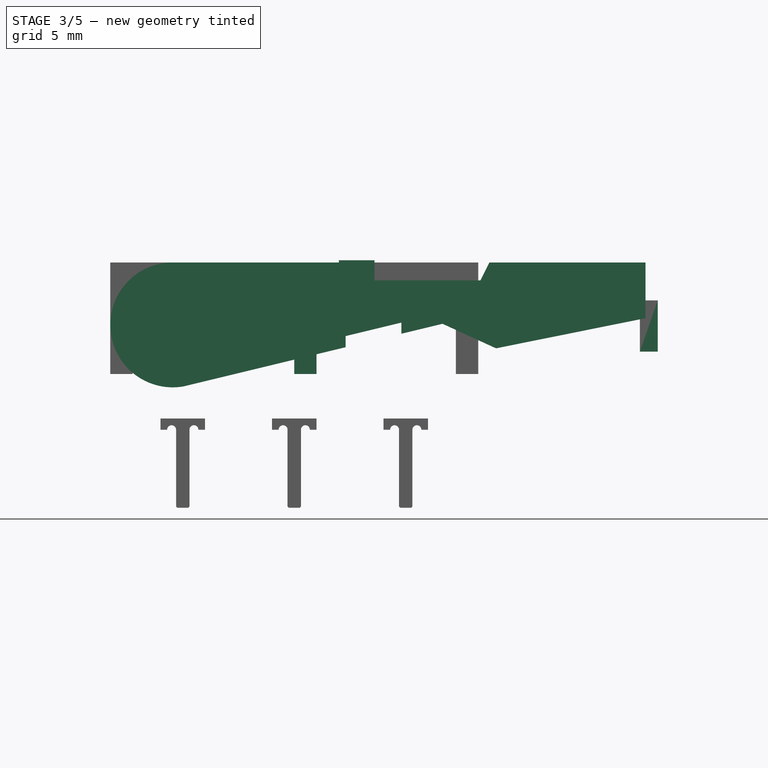
[diagram: stage 3 of 5 — front view after this stage's code; geometry added in this stage tinted green]
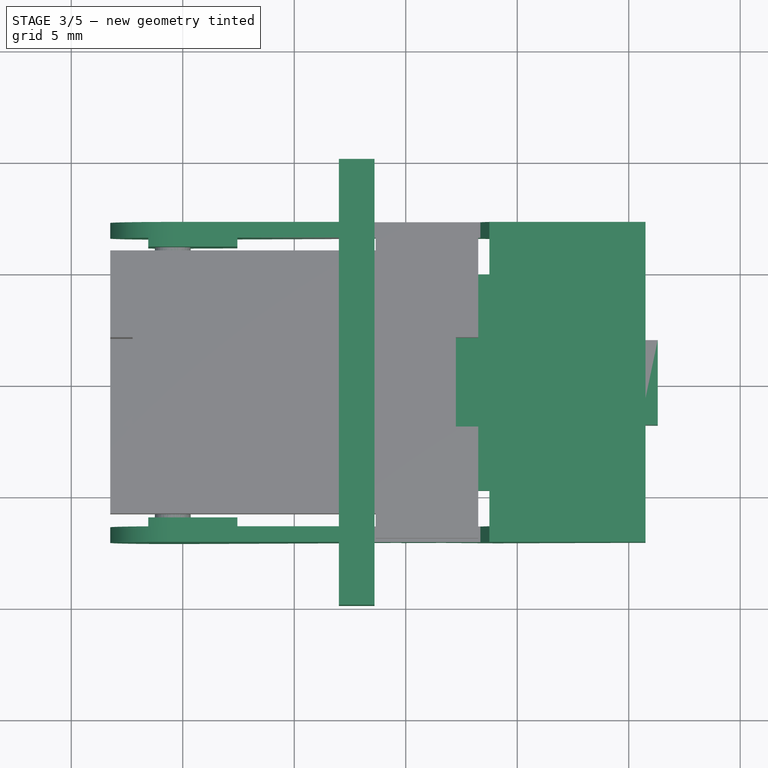
[diagram: stage 3 of 5 — top view after this stage's code; geometry added in this stage tinted green]
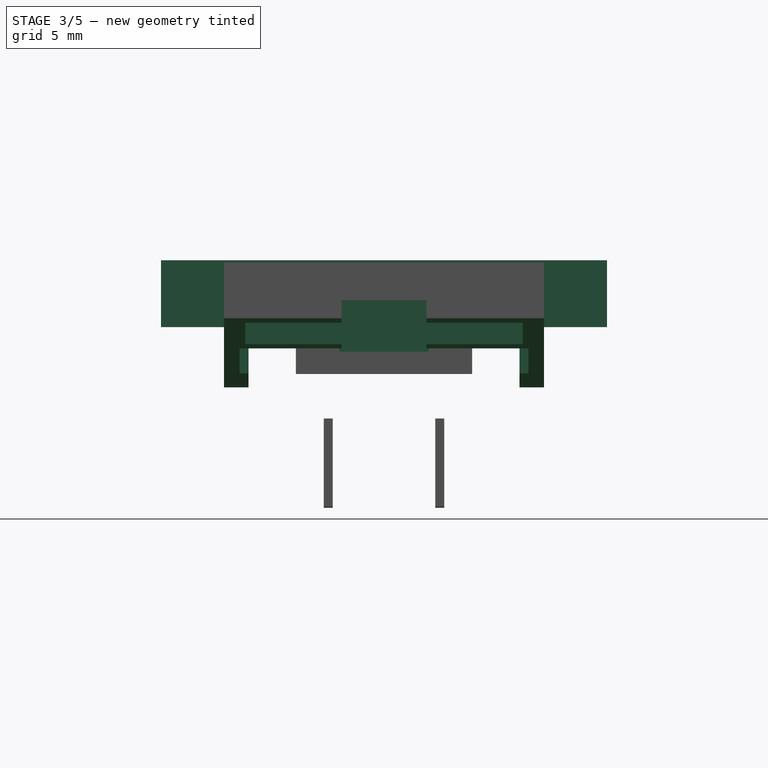
[diagram: stage 3 of 5 — right view after this stage's code; geometry added in this stage tinted green]
FEATURE [Part::Box] Box014  label="Cube012"
  AttacherType = Attacher::AttachEngine3D
  Height = 3.3
  Length = 1
  Placement = pos=(0,-3.95,2.9) rot=(0,0,1;0rad)
  Width = 2.05
FEATURE [Part::Box] Box018  label="Cube015"
  AttacherType = Attacher::AttachEngine3D
  Height = 3
  Length = 1.6
  Placement = pos=(2,-10,5) rot=(0,0,1;0rad)
  Width = 20
FEATURE [Part::Box] Box013  label="Cube011"
  AttacherType = Attacher::AttachEngine3D
  Height = 3.3
  Length = 1
  Placement = pos=(0,1.9,2.9) rot=(0,0,1;0rad)
  Width = 2.05
  expr: Placement.Base.y = 1.9
FEATURE [Part::Box] Box015  label="Cube013"
  AttacherType = Attacher::AttachEngine3D
  Height = 2.3
  Length = 0.8
  Placement = pos=(0.2,-1.9,3.9) rot=(0,0,1;0rad)
  Width = 3.8
  expr: Placement.Base.y = -Width / 2
FEATURE [Part::Box] Box016  label="Cube014"
  AttacherType = Attacher::AttachEngine3D
  Height = 2.3
  Length = 0.8
  Placement = pos=(15.5,-1.9,3.9) rot=(0,0,1;0rad)
  Width = 3.8
  expr: Placement.Base.y = -Width / 2
FEATURE [Part::Box] Box019  label="Cube016"
  AttacherType = Attacher::AttachEngine3D
  Height = 1
  Length = 12.3
  Placement = pos=(2.1,-4.85,5.3) rot=(0,0,1;0rad)
  Width = 9.7
  expr: Placement.Base.y = -Width / 2
FEATURE [Sketcher::SketchObject] Sketch
  Placement = pos=(0,0,0) rot=(1,0,0;1.5708rad)
  expr: Constraints[24] = Constraints.La2
  expr: Constraints.La2 = (Constraints.A2 - 5.4mm) / 2
  expr: Constraints[4] = Sketch.Constraints.R1
  expr: Constraints[3] = Sketch.Constraints.R1
  sketch-geometry (14):
    g0: ArcOfCircle CenterX=2.8 CenterY=2.8 CenterZ=0 NormalX=0 NormalY=0 NormalZ=1 AngleXU=0 Radius=2.8 StartAngle=1.5708 EndAngle=4.88692
    g1: LineSegment StartX=24 StartY=5.6 StartZ=0 EndX=24 EndY=3.1 EndZ=0
    g2: LineSegment StartX=17.3 StartY=1.75 StartZ=0 EndX=24 EndY=3.1 EndZ=0
    g3: LineSegment StartX=17 StartY=5.6 StartZ=0 EndX=24 EndY=5.6 EndZ=0
    g4: LineSegment StartX=2.8 StartY=5.6 StartZ=0 EndX=10.8 EndY=5.6 EndZ=0
    g5: LineSegment StartX=11.2 StartY=4.8 StartZ=0 EndX=16.6 EndY=4.8 EndZ=0
    g6: LineSegment StartX=16.6 StartY=4.8 StartZ=0 EndX=17 EndY=5.6 EndZ=0
    g7: LineSegment StartX=11.2 StartY=4.8 StartZ=0 EndX=10.8 EndY=5.6 EndZ=0
    g8: LineSegment StartX=14.9 StartY=2.85 StartZ=0 EndX=17.3 EndY=1.75 EndZ=0
    g9: LineSegment StartX=10.5564 StartY=1.8 StartZ=0 EndX=10.5564 EndY=2.3 EndZ=0
    g10: LineSegment StartX=13.0564 StartY=2.40434 StartZ=0 EndX=13.0564 EndY=2.90434 EndZ=0
    g11: LineSegment StartX=3.28621 StartY=0.0425383 StartZ=0 EndX=10.5564 EndY=1.8 EndZ=0
    g12: LineSegment StartX=10.5564 StartY=2.3 StartZ=0 EndX=13.0564 EndY=2.90434 EndZ=0
    g13: LineSegment StartX=13.0564 StartY=2.40434 StartZ=0 EndX=14.9 EndY=2.85 EndZ=0
  constraints (43):
    c: Angle(g0) = 3.31613
    c: Vertical(g0,g0)
    c: Radius(g0) = 2.8  'R1'
    c: DistanceX(g-1,g0) = 2.8
    c: DistanceY(g-1,g0) = 2.8
    c: DistanceX(g-1,g1) = 24
    c: Vertical(g1)
    c: Distance(g1) = 2.5
    c: DistanceX(g2,g1) = 6.7
    c: Coincident(g2,g1)
    c: DistanceY(g2,g1) = 3.85
    c: Horizontal(g3)
    c: DistanceY(g-1,g1) = 5.6
    c: Coincident(g3,g1)
    c: Horizontal(g4)
    c: Coincident(g4,g0)
    c: Distance(g4,g3) = 6.2  'A2'
    c: Horizontal(g5)
    c: Coincident(g7,g4)
    c: Coincident(g7,g5)
    c: Coincident(g5,g6)
    c: Coincident(g6,g3)
    c: DistanceY(g5,g3) = 0.8
    c: DistanceX(g5,g3) = 0.4  'La2'
    c: DistanceX(g4,g5) = 0.4
    c: Coincident(g8,g2)
    c: DistanceY(g8,g5) = 1.95
    c: DistanceX(g-1,g8) = 14.9
    c: Vertical(g9)
    c: Distance(g9) = 0.5
    c: Parallel(g10,g9)
    c: Equal(g10,g9)
    c: DistanceY(g9,g4) = 3.3
    c: Coincident(g13,g10)
    c: Coincident(g10,g12)
    c: Coincident(g12,g9)
    c: Coincident(g11,g9)
    c: Coincident(g11,g0)
    c: Coincident(g13,g8)
    c: Parallel(g12,g11)
    c: Parallel(g13,g12)
    c: DistanceX(g9,g10) = 2.5
    c: Distance(g1,g3) = 7
FEATURE [Part::Extrusion] Extrude
  Base = -> Sketch
  Dir = (0,-1,2e-16)
  DirMode = 2
  FaceMakerClass = Part::FaceMakerBullseye
  LengthFwd = 14.35
  LengthRev = 0
  Placement = pos=(0,7.175,0) rot=(0,0,1;0rad)
  Solid = true
  Symmetric = false
  expr: Placement.Base.y = LengthFwd / 2
FEATURE [Part::Box] Box020  label="Cube017"
  AttacherType = Attacher::AttachEngine3D
  Height = 4.6
  Length = 4.8
  Placement = pos=(18.2,-6.225,0) rot=(0,0,1;0rad)
  Width = 12.45
  expr: Placement.Base.z = 0
  expr: Length = 7.2 - 1.4 - 1
  expr: Placement.Base.y = -Width / 2
  expr: Width = 14.35 - 0.95 * 2
FEATURE [Part::Box] Box021  label="Cube018"
  AttacherType = Attacher::AttachEngine3D
  Height = 3.2
  Length = 0.3
  Placement = pos=(17,-6.475,0) rot=(0,0,1;0rad)
  Width = 12.95
  expr: Height = 5.6 - 2.4
  expr: Placement.Base.z = 0
  expr: Placement.Base.y = -Width / 2
  expr: Width = 12.95
FEATURE [Part::Compound] Compound002
  Links = -> [Box020,Box021]
FEATURE [Part::Box] Box022  label="Cube019"
  AttacherType = Attacher::AttachEngine3D
  Height = 10
  Length = 11.3
  Placement = pos=(5.7,-6.475,0) rot=(0,0,1;0rad)
  Width = 12.95
  expr: Placement.Base.x = 1.7 + 4
  expr: Placement.Base.y = -Width / 2
FEATURE [Part::Cylinder] Cylinder005
  Angle = 360
  AttacherType = Attacher::AttachEngine3D
  Height = 2
  Placement = pos=(2.8,-4.1,2.8) rot=(1,0,0;1.5708rad)
  Radius = 0.8
FEATURE [Part::Cut] Cut009
  Base = -> Extrude
  Tool = -> Box023
FEATURE [Part::Compound] Compound001
  Links = -> [Box022,Box024]
FEATURE [Part::Cut] Cut008
  Base = -> Cut009
  Tool = -> Compound001
FEATURE [Part::Cut] Cut007
  Base = -> Cut008
  Tool = -> Compound002
FEATURE [Part::MultiFuse] Fusion006  label="LeverUnion"
  Placement = pos=(-8.25,0,2.3) rot=(0,0,1;0rad)
  Shapes = -> [Cut007,Cylinder005,Cylinder006]
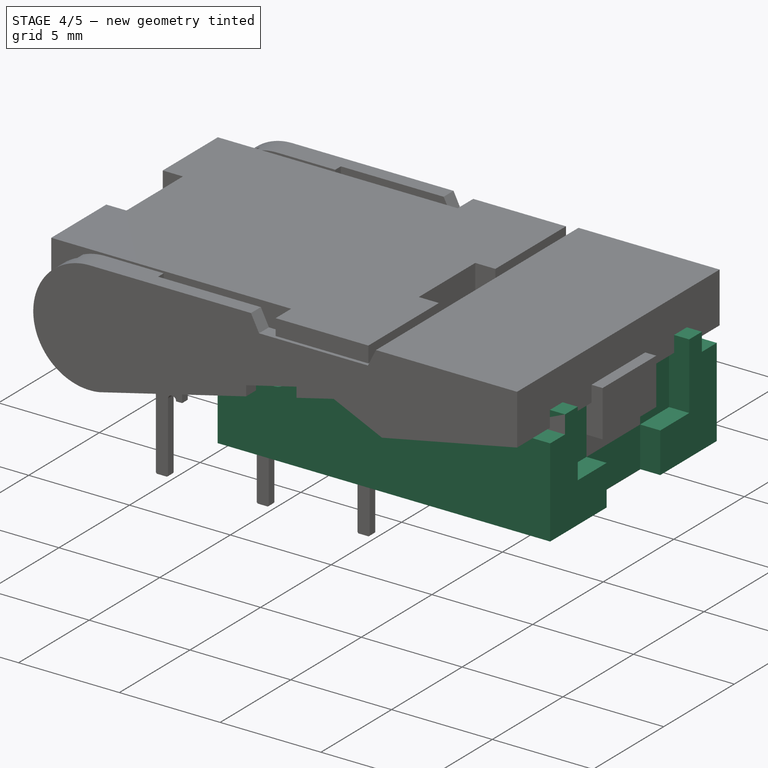
[diagram: stage 4 of 5 — iso view after this stage's code; geometry added in this stage tinted green]
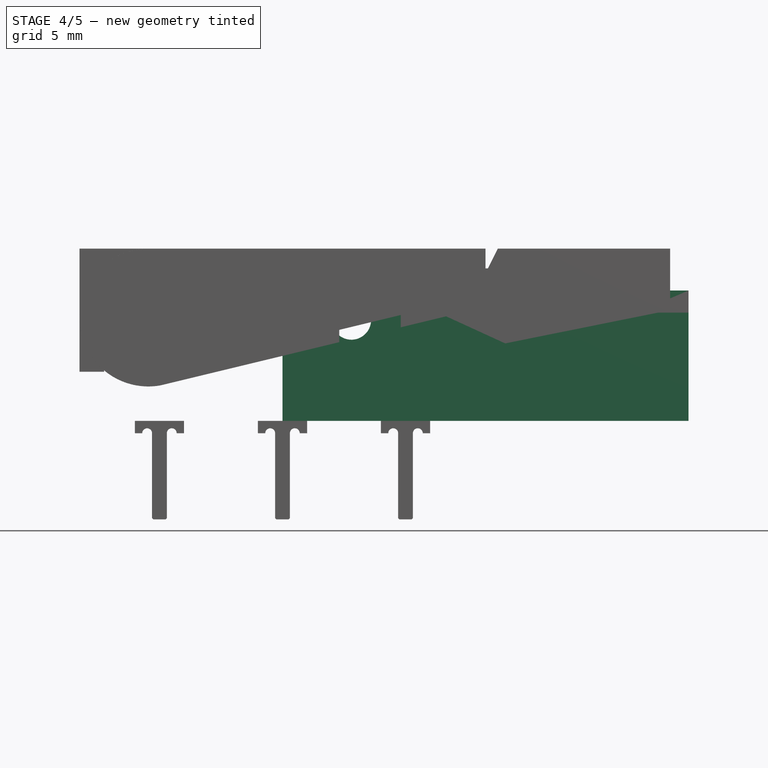
[diagram: stage 4 of 5 — front view after this stage's code; geometry added in this stage tinted green]
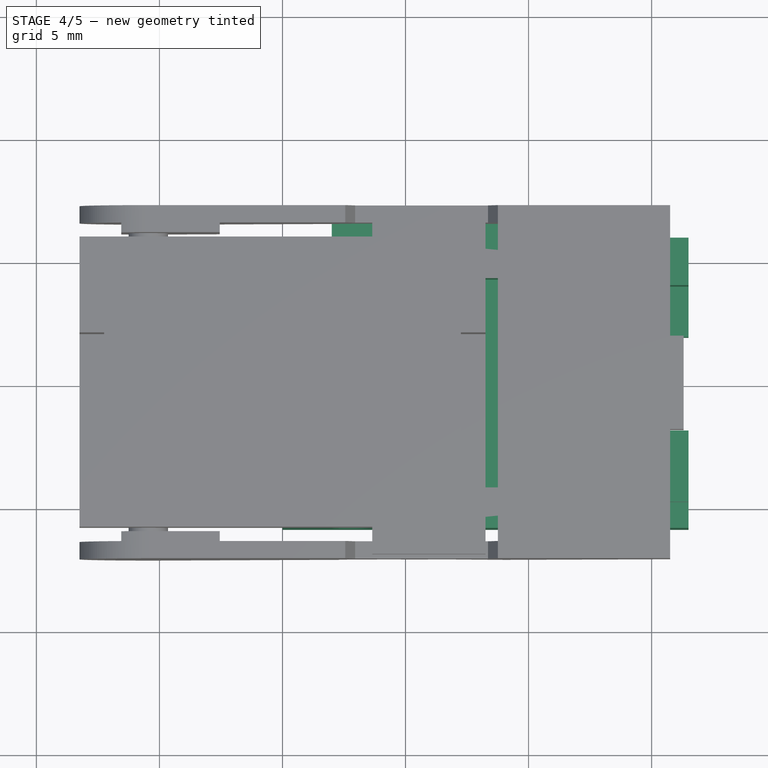
[diagram: stage 4 of 5 — top view after this stage's code; geometry added in this stage tinted green]
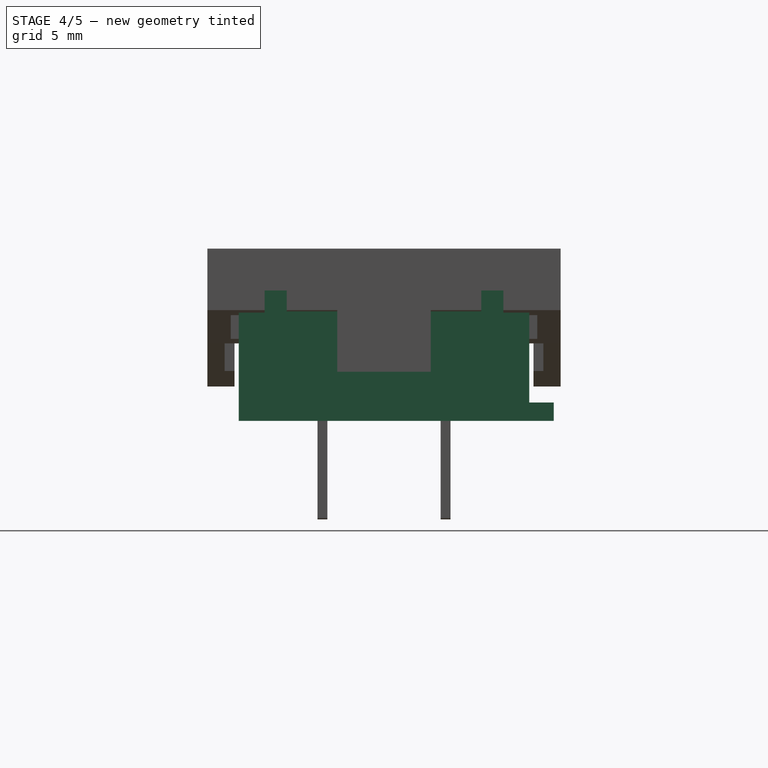
[diagram: stage 4 of 5 — right view after this stage's code; geometry added in this stage tinted green]
FEATURE [Part::Box] Box  label="Main"
  AttacherType = Attacher::AttachEngine3D
  Height = 5.3
  Length = 16.5
  Placement = pos=(0,-5.9,0.9) rot=(0,0,1;0rad)
  Width = 11.8
  expr: Placement.Base.y = -Width / 2
FEATURE [Part::Box] Box005  label="sk1"
  AttacherType = Attacher::AttachEngine3D
  Height = 0.75
  Length = 12.8
  Placement = pos=(2,5.9,0.9) rot=(0,0,1;0rad)
  Width = 1
FEATURE [Part::Box] Box007  label="Cube005"
  AttacherType = Attacher::AttachEngine3D
  Height = 1
  Length = 16.5
  Placement = pos=(0,4.85,5.3) rot=(0,0,1;0rad)
  Width = 1.05
FEATURE [Part::Box] Box011  label="Cube009"
  AttacherType = Attacher::AttachEngine3D
  Height = 3.3
  Length = 1
  Placement = pos=(15.5,-3.95,2.9) rot=(0,0,1;0rad)
  Width = 2.05
FEATURE [Part::Box] Box017  label="Cube"
  AttacherType = Attacher::AttachEngine3D
  Height = 4.3
  Length = 12.4
  Placement = pos=(2,-4.25,1.9) rot=(0,0,1;0rad)
  Width = 8.5
  expr: Placement.Base.y = -Width / 2
FEATURE [Part::Box] Box009  label="Cube007"
  AttacherType = Attacher::AttachEngine3D
  Height = 5.3
  Length = 1
  Placement = pos=(0,-1.9,0.9) rot=(0,0,1;0rad)
  Width = 3.8
  expr: Placement.Base.y = -Width / 2
FEATURE [Part::Box] Box010  label="Cube008"
  AttacherType = Attacher::AttachEngine3D
  Height = 5.3
  Length = 1
  Placement = pos=(15.5,-1.9,0.9) rot=(0,0,1;0rad)
  Width = 3.8
  expr: Placement.Base.y = -Width / 2
FEATURE [Part::Cylinder] Cylinder004
  Angle = 360
  AttacherType = Attacher::AttachEngine3D
  Height = 20
  Placement = pos=(2.8,10,5) rot=(1,0,0;1.5708rad)
  Radius = 0.8
FEATURE [Part::Box] Box008  label="Cube006"
  AttacherType = Attacher::AttachEngine3D
  Height = 1
  Length = 16.5
  Placement = pos=(0,-5.9,5.3) rot=(0,0,1;0rad)
  Width = 1.05
FEATURE [Part::MultiFuse] Fusion002
  Shapes = -> [Box008,Box007]
FEATURE [Part::Cut] Cut002
  Base = -> Box
  Tool = -> Fusion002
FEATURE [Part::Box] Box012  label="Cube010"
  AttacherType = Attacher::AttachEngine3D
  Height = 3.3
  Length = 1
  Placement = pos=(15.5,1.9,2.9) rot=(0,0,1;0rad)
  Width = 2.05
  expr: Placement.Base.y = 1.9
FEATURE [Part::MultiFuse] Fusion005
  Shapes = -> [Box018,Cylinder004]
FEATURE [Part::MultiFuse] Fusion003
  Shapes = -> [Box009,Box013,Box014,Box011,Box012,Box010]
FEATURE [Part::Cut] Cut003
  Base = -> Cut002
  Tool = -> Fusion003
FEATURE [Part::Cut] Cut004
  Base = -> Cut003
  Tool = -> Box017
FEATURE [Part::Cut] Cut005
  Base = -> Cut004
  Tool = -> Fusion005
FEATURE [Part::Cut] Cut006
  Base = -> Cut005
  Tool = -> Box019
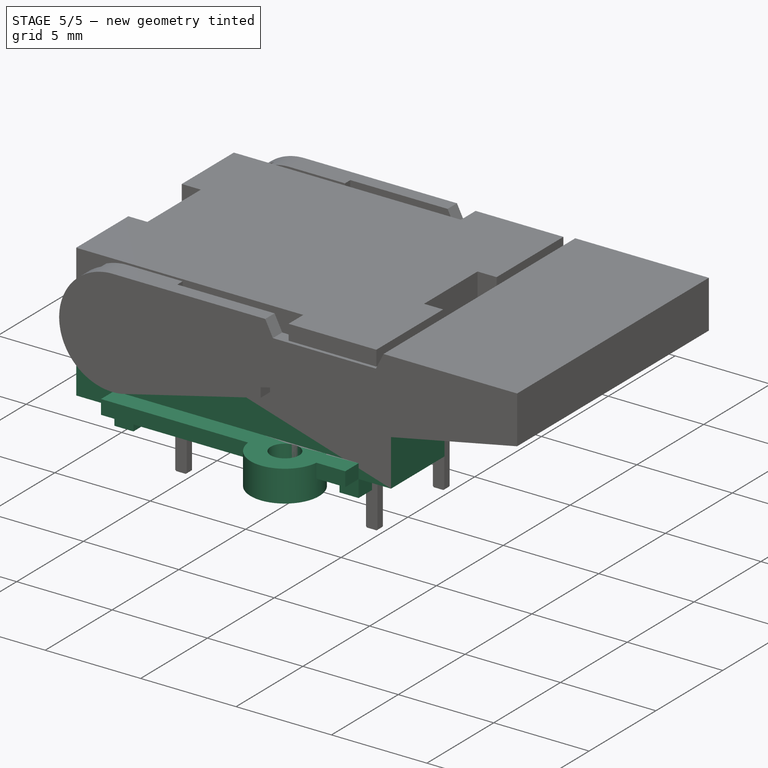
[diagram: stage 5 of 5 — iso view after this stage's code; geometry added in this stage tinted green]
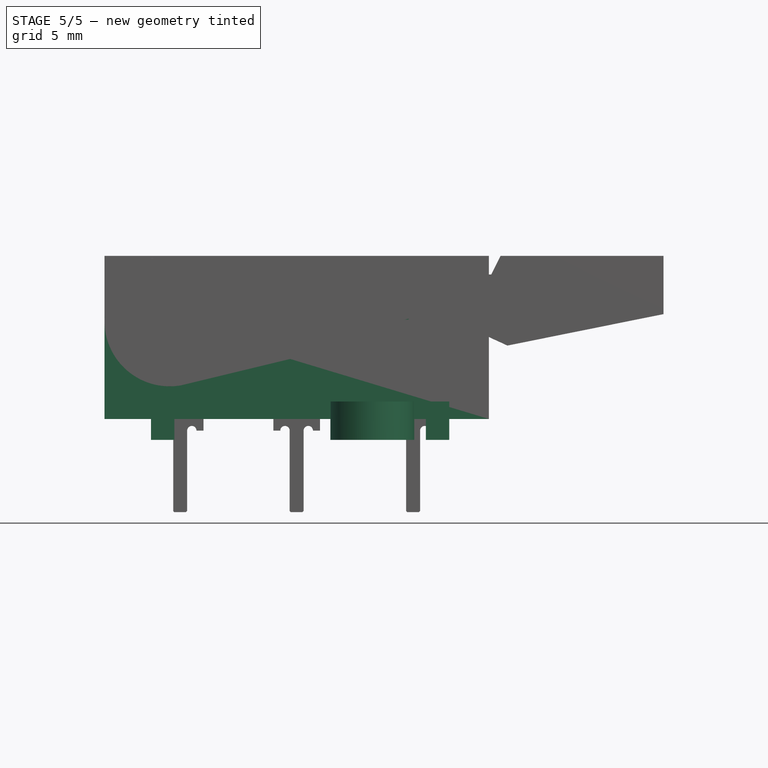
[diagram: stage 5 of 5 — front view after this stage's code; geometry added in this stage tinted green]
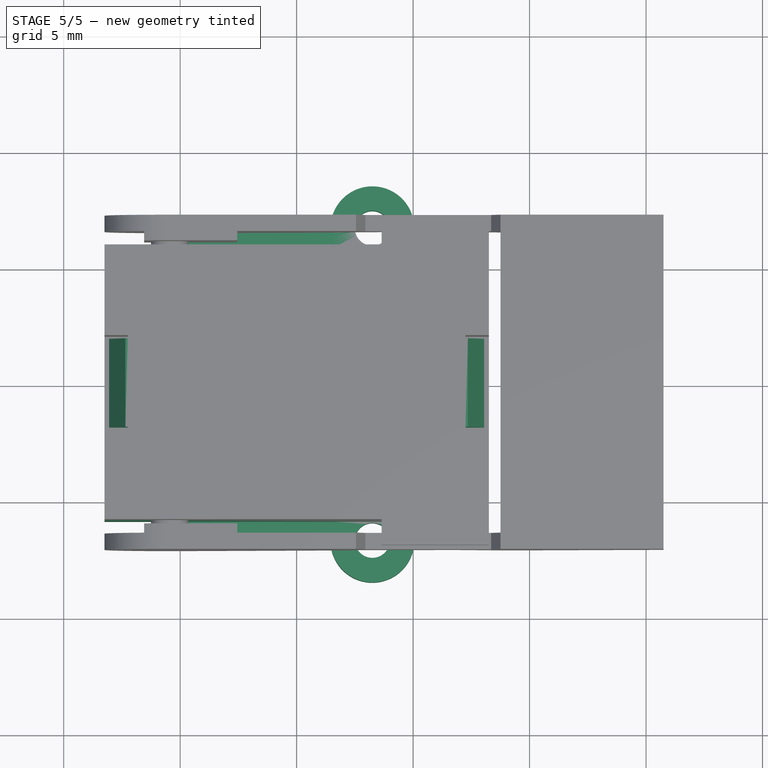
[diagram: stage 5 of 5 — top view after this stage's code; geometry added in this stage tinted green]
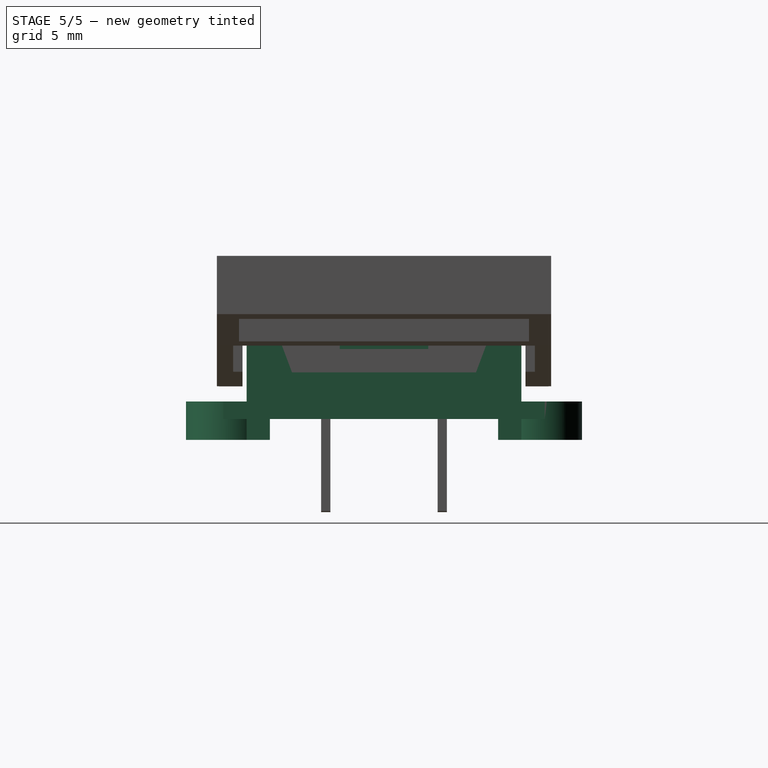
[diagram: stage 5 of 5 — right view after this stage's code; geometry added in this stage tinted green]
FEATURE [Part::Box] Box002  label="Cube002"
  AttacherType = Attacher::AttachEngine3D
  Height = 0.9
  Length = 1
  Placement = pos=(13.8,4.9,0) rot=(0,0,1;0rad)
  Width = 1
FEATURE [Part::Cylinder] Cylinder002
  Angle = 360
  AttacherType = Attacher::AttachEngine3D
  Height = 10
  Placement = pos=(11.5,6.7,0) rot=(0,0,1;0rad)
  Radius = 0.75
FEATURE [Part::Cylinder] Cylinder001
  Angle = 360
  AttacherType = Attacher::AttachEngine3D
  Height = 1.65
  Placement = pos=(11.5,6.7,0) rot=(0,0,1;0rad)
  Radius = 1.8
FEATURE [Part::Cylinder] Cylinder003
  Angle = 360
  AttacherType = Attacher::AttachEngine3D
  Height = 10
  Placement = pos=(11.5,-6.7,0) rot=(0,0,1;0rad)
  Radius = 0.75
FEATURE [Part::Box] Box001  label="Cube001"
  AttacherType = Attacher::AttachEngine3D
  Height = 0.9
  Length = 1
  Placement = pos=(2,4.9,0) rot=(0,0,1;0rad)
  Width = 1
FEATURE [Part::Box] Box003  label="Cube003"
  AttacherType = Attacher::AttachEngine3D
  Height = 0.9
  Length = 1
  Placement = pos=(2,-5.9,0) rot=(0,0,1;0rad)
  Width = 1
FEATURE [Part::Box] Box004  label="Cube004"
  AttacherType = Attacher::AttachEngine3D
  Height = 0.9
  Length = 1
  Placement = pos=(13.8,-5.9,0) rot=(0,0,1;0rad)
  Width = 1
FEATURE [Part::MultiFuse] Fusion004  label="Pods"
  Shapes = -> [Box004,Box002,Box003,Box001]
FEATURE [Part::MultiFuse] Fusion001
  Shapes = -> [Cylinder001,Box005]
FEATURE [Part::Box] Box006  label="sk2"
  AttacherType = Attacher::AttachEngine3D
  Height = 0.75
  Length = 12.8
  Placement = pos=(2,-6.9,0.9) rot=(0,0,1;0rad)
  Width = 1
FEATURE [Part::Cylinder] Cylinder
  Angle = 360
  AttacherType = Attacher::AttachEngine3D
  Height = 1.65
  Placement = pos=(11.5,-6.7,0) rot=(0,0,1;0rad)
  Radius = 1.8
FEATURE [Part::MultiFuse] Fusion
  Shapes = -> [Box006,Cylinder]
FEATURE [Part::Cut] Cut
  Base = -> Fusion
  Tool = -> Cylinder003
FEATURE [Part::Cut] Cut001
  Base = -> Fusion001
  Tool = -> Cylinder002
FEATURE [Part::Chamfer] Chamfer
  Base = -> Box015
  Edges = 1 edges: [Edge2 r1=1.5 r2=0.7]
FEATURE [Part::Chamfer] Chamfer001
  Base = -> Box016
  Edges = 1 edges: [Edge6 r1=1.5 r2=0.7]
FEATURE [Part::Compound] Compound  label="BottomCompound"
  Links = -> [Cut006,Cut,Cut001,Fusion004,Chamfer,Chamfer001]
  Placement = pos=(-8.25,0,0) rot=(0,0,1;0rad)
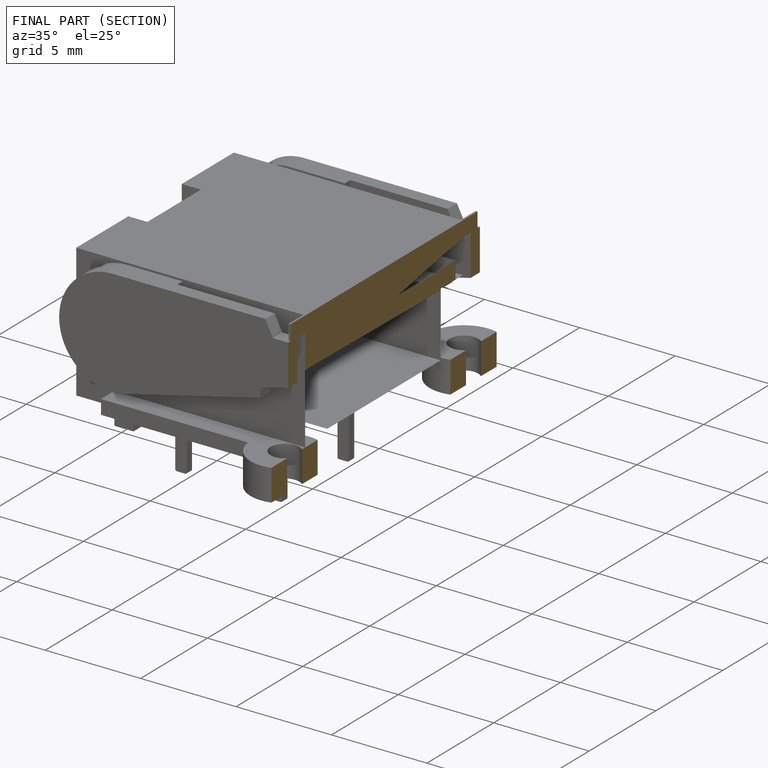
[diagram: finished part — half-section view (interior)]
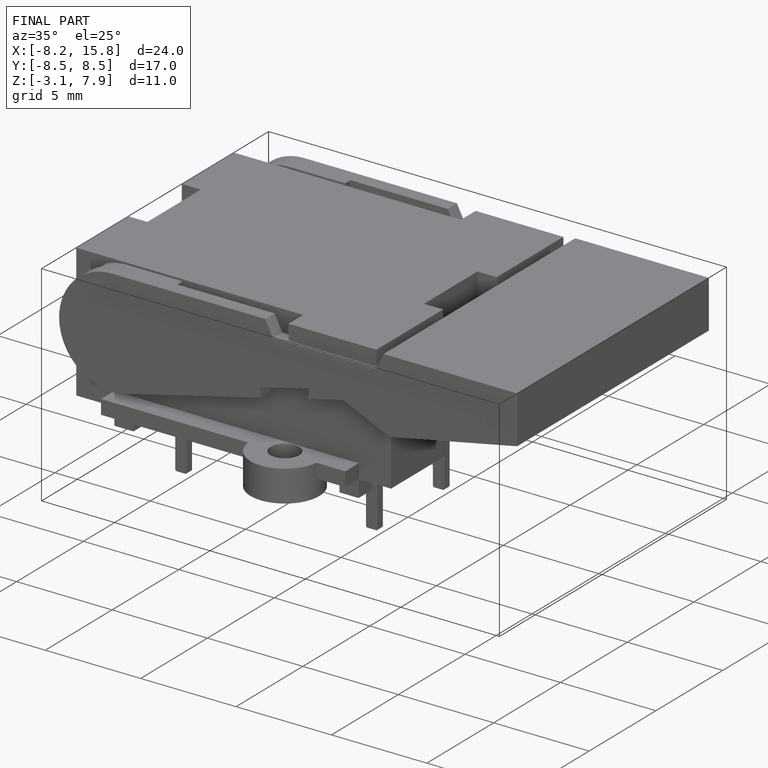
[diagram: finished part — iso view with bounding-box wireframe]
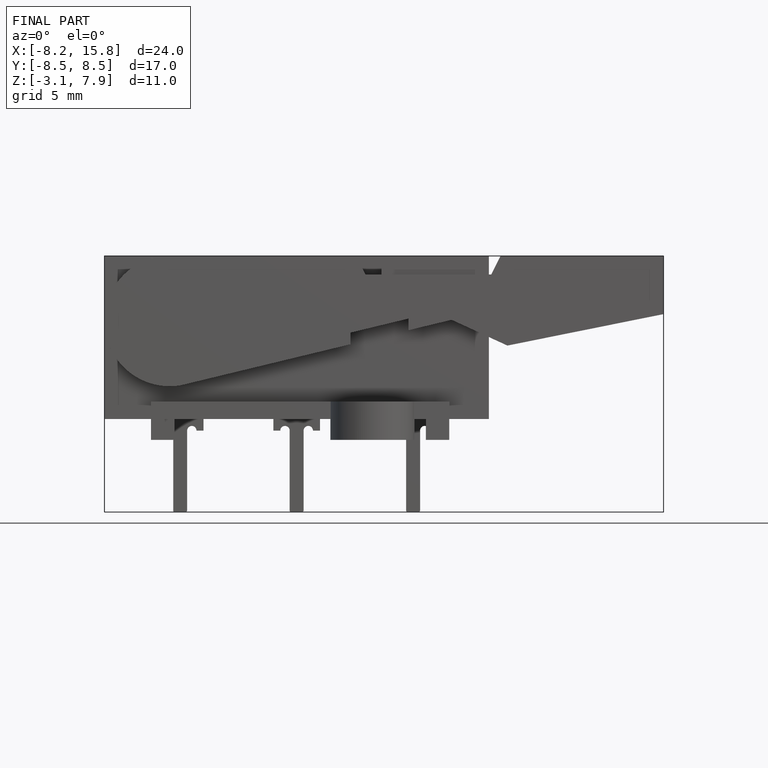
[diagram: finished part — front view with bounding-box wireframe]
